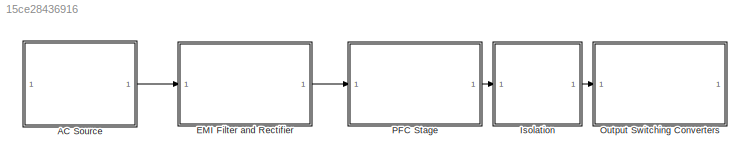
MODEL slx_15ce28436916
KIND model
CONFIG AbsTol = auto
CONFIG EnableMultiTasking = off
CONFIG FixedStep = auto
CONFIG MaxStep = auto
CONFIG MinStep = auto
CONFIG RelTol = 1e-3
CONFIG SampleTimeConstraint = Unconstrained
CONFIG SolverName = VariableStepAuto
CONFIG StartTime = 0.0
CONFIG StopTime = 10.0
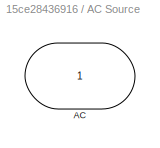
BLOCK [SubSystem] AC Source
BLOCK [Outport] AC Source/AC
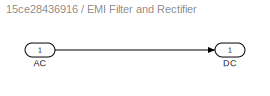
BLOCK [SubSystem] EMI Filter and Rectifier
BLOCK [Inport] EMI Filter and Rectifier/AC
BLOCK [Outport] EMI Filter and Rectifier/DC
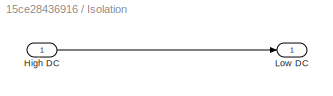
BLOCK [SubSystem] Isolation 
BLOCK [Inport] Isolation /High DC
BLOCK [Outport] Isolation /Low DC
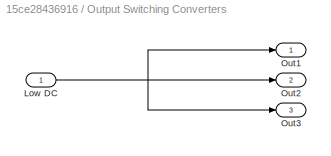
BLOCK [SubSystem] Output Switching Converters
BLOCK [Inport] Output Switching Converters/Low DC
BLOCK [Outport] Output Switching Converters/Out1
BLOCK [Outport] Output Switching Converters/Out2
  Port = 2
BLOCK [Outport] Output Switching Converters/Out3
  Port = 3
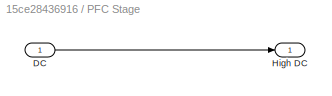
BLOCK [SubSystem] PFC Stage
BLOCK [Inport] PFC Stage/DC
BLOCK [Outport] PFC Stage/High DC
LINE AC Source:1 -> EMI Filter and Rectifier:1
LINE EMI Filter and Rectifier/AC:1 -> EMI Filter and Rectifier/DC:1
LINE EMI Filter and Rectifier:1 -> PFC Stage:1
LINE Isolation /High DC:1 -> Isolation /Low DC:1
LINE Isolation :1 -> Output Switching Converters:1
NET Output Switching Converters/Low DC:1 -> Output Switching Converters/Out1:1, Output Switching Converters/Out2:1, Output Switching Converters/Out3:1
LINE PFC Stage/DC:1 -> PFC Stage/High DC:1
LINE PFC Stage:1 -> Isolation :1
note: NET lines group one-source signal fan-out (src -> all destinations, sorted); 1:1 wires keep LINE
